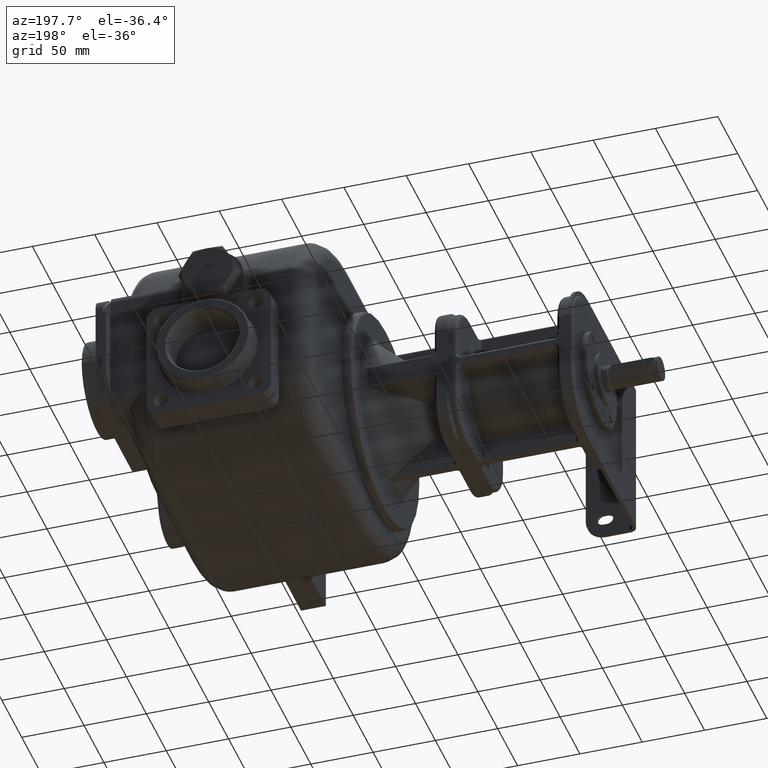
[diagram: clean part render]
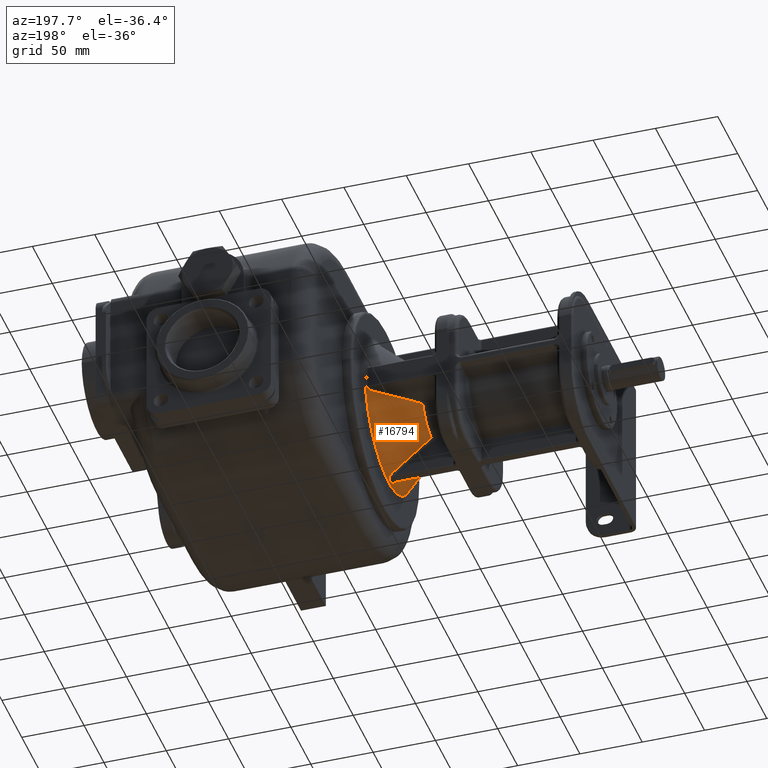
[diagram: same view with one face highlighted and labeled with its STEP entity id]
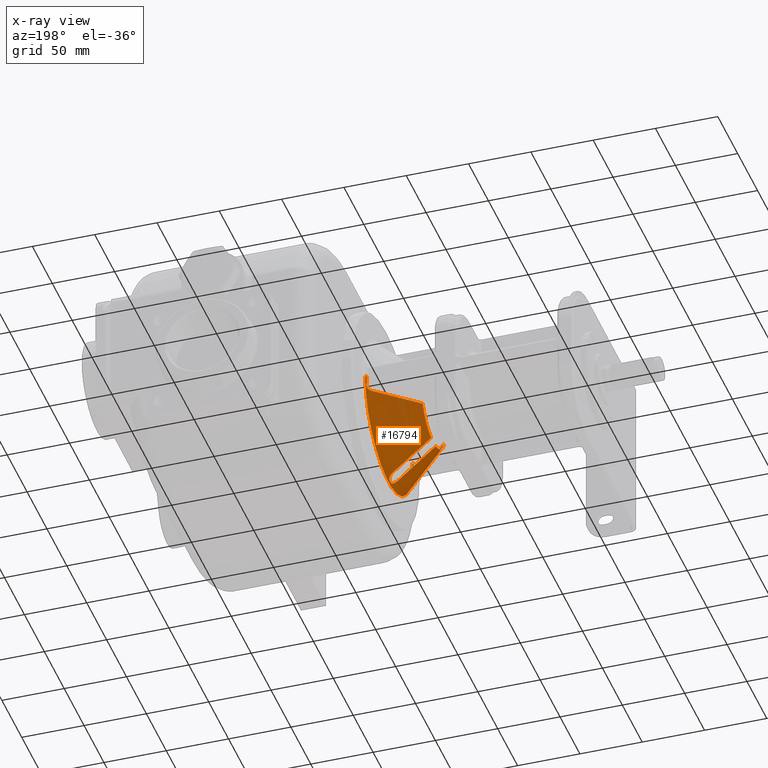
[diagram: x-ray of the same camera — body ghosted, the highlighted face saturated]
A machine part, auxiliary view. The second image highlights one B-rep face of the part: STEP entity #16794.
The next image is the same camera in x-ray: the body ghosted, the highlighted face saturated — about 0% of this face is hidden behind the body in this view.
In plain terms, the highlighted conical surface has half-angle 40 deg.
Its self-contained STEP definition (entity closure, byte-faithful):
#3073=CARTESIAN_POINT('',(-1.011567008888E2,1.158367810176E2,
-5.447662268019E1));
#3074=CARTESIAN_POINT('',(-1.010528092453E2,1.158370388626E2,
-5.456426528846E1));
#3075=CARTESIAN_POINT('',(-1.008472878269E2,1.158319745231E2,
-5.473826798686E1));
#3076=CARTESIAN_POINT('',(-1.005449646376E2,1.158079825189E2,
-5.499591031786E1));
#3077=CARTESIAN_POINT('',(-1.002507512562E2,1.157684659708E2,
-5.524829979294E1));
#3078=CARTESIAN_POINT('',(-9.996590091925E1,1.157140374673E2,
-5.549424817225E1));
#3079=CARTESIAN_POINT('',(-9.969176353626E1,1.156456867191E2,
-5.573246087079E1));
#3080=CARTESIAN_POINT('',(-9.942948093722E1,1.155646739086E2,
-5.596178531797E1));
#3081=CARTESIAN_POINT('',(-9.918033927497E1,1.154721044994E2,
-5.618096676096E1));
#3082=CARTESIAN_POINT('',(-9.894482402712E1,1.153693317733E2,
-5.638940548662E1));
#3083=CARTESIAN_POINT('',(-9.872311211805E1,1.152576387761E2,
-5.658677660881E1));
#3084=CARTESIAN_POINT('',(-9.851552033194E1,1.151380402953E2,
-5.677267012987E1));
#3085=CARTESIAN_POINT('',(-9.832187761294E1,1.150118598153E2,
-5.694706736105E1));
#3086=CARTESIAN_POINT('',(-9.814192933810E1,1.148801492655E2,
-5.711005492639E1));
#3087=CARTESIAN_POINT('',(-9.797552340422E1,1.147437130812E2,
-5.726166247373E1));
#3088=CARTESIAN_POINT('',(-9.782211493533E1,1.146036395771E2,
-5.740223488552E1));
#3089=CARTESIAN_POINT('',(-9.768120641617E1,1.144606796027E2,
-5.753211415495E1));
#3090=CARTESIAN_POINT('',(-9.755239833352E1,1.143153336955E2,
-5.765158518988E1));
#3091=CARTESIAN_POINT('',(-9.743500297319E1,1.141683099790E2,
-5.776116495038E1));
#3092=CARTESIAN_POINT('',(-9.732846196922E1,1.140201366769E2,
-5.786128115293E1));
#3093=CARTESIAN_POINT('',(-9.723235109135E1,1.138710867276E2,
-5.795227051633E1));
#3094=CARTESIAN_POINT('',(-9.714604225657E1,1.137214744274E2,
-5.803464055295E1));
#3095=CARTESIAN_POINT('',(-9.706903038610E1,1.135717193717E2,
-5.810879165527E1));
#3096=CARTESIAN_POINT('',(-9.700095971560E1,1.134220901248E2,
-5.817501154467E1));
#3097=CARTESIAN_POINT('',(-9.694138754071E1,1.132727192796E2,
-5.823367090760E1));
#3098=CARTESIAN_POINT('',(-9.688983882887E1,1.131236429525E2,
-5.828517339647E1));
#3099=CARTESIAN_POINT('',(-9.684589035304E1,1.129749645686E2,
-5.832987569404E1));
#3100=CARTESIAN_POINT('',(-9.680922339036E1,1.128264786131E2,
-5.836806220816E1));
#3101=CARTESIAN_POINT('',(-9.677969588712E1,1.126781825184E2,
-5.839985656806E1));
#3102=CARTESIAN_POINT('',(-9.675697096768E1,1.125304763340E2,
-5.842552856845E1));
#3103=CARTESIAN_POINT('',(-9.674087937685E1,1.123835376223E2,
-5.844522031893E1));
#3104=CARTESIAN_POINT('',(-9.673139275592E1,1.122374774393E2,
-5.845895912011E1));
#3105=CARTESIAN_POINT('',(-9.672814634518E1,1.120924866232E2,
-5.846705360079E1));
#3106=CARTESIAN_POINT('',(-9.672999254693E1,1.119967253805E2,
-5.846881095181E1));
#3107=CARTESIAN_POINT('',(-9.673194510983E1,1.119488538543E2,
-5.846876772443E1));
#3109=CARTESIAN_POINT('',(-9.673194510983E1,1.119488538543E2,
-5.846876772443E1));
#3110=CARTESIAN_POINT('',(-9.674517735073E1,1.116239613016E2,
-5.846848527592E1));
#3111=CARTESIAN_POINT('',(-9.676503582200E1,1.109740887467E2,
-5.846806575147E1));
#3112=CARTESIAN_POINT('',(-9.677495142533E1,1.099997057879E2,
-5.846785958511E1));
#3113=CARTESIAN_POINT('',(-9.676502068897E1,1.090251994314E2,
-5.846805999086E1));
#3114=CARTESIAN_POINT('',(-9.674519739346E1,1.083758816110E2,
-5.846847469332E1));
#3115=CARTESIAN_POINT('',(-9.673195452893E1,1.080509309162E2,
-5.846875863946E1));
#3117=CARTESIAN_POINT('',(-9.673195452893E1,1.080509309162E2,
-5.846875863946E1));
#3118=CARTESIAN_POINT('',(-9.672999949093E1,1.080032533689E2,
-5.846880672108E1));
#3119=CARTESIAN_POINT('',(-9.672808844020E1,1.079071473826E2,
-5.846708821523E1));
#3120=CARTESIAN_POINT('',(-9.673140650376E1,1.077622989162E2,
-5.845893919371E1));
#3121=CARTESIAN_POINT('',(-9.674095646810E1,1.076161678639E2,
-5.844514359305E1));
#3122=CARTESIAN_POINT('',(-9.675695762192E1,1.074691841956E2,
-5.842552507752E1));
#3123=CARTESIAN_POINT('',(-9.677973898078E1,1.073215514123E2,
-5.839980804989E1));
#3124=CARTESIAN_POINT('',(-9.680930423946E1,1.071734283270E2,
-5.836798962902E1));
#3125=CARTESIAN_POINT('',(-9.684583259812E1,1.070251505631E2,
-5.832992982956E1));
#3126=CARTESIAN_POINT('',(-9.688965211455E1,1.068768711129E2,
-5.828535744139E1));
#3127=CARTESIAN_POINT('',(-9.694107051226E1,1.067282138647E2,
-5.823398948350E1));
#3128=CARTESIAN_POINT('',(-9.700049236946E1,1.065790705709E2,
-5.817547249572E1));
#3129=CARTESIAN_POINT('',(-9.706840024747E1,1.064295437045E2,
-5.810939896999E1));
#3130=CARTESIAN_POINT('',(-9.714532043018E1,1.062797827491E2,
-5.803532813976E1));
#3131=CARTESIAN_POINT('',(-9.723171850990E1,1.061300271865E2,
-5.795287710684E1));
#3132=CARTESIAN_POINT('',(-9.732793883184E1,1.059806444423E2,
-5.786177582499E1));
#3133=CARTESIAN_POINT('',(-9.743467767509E1,1.058320081364E2,
-5.776146200132E1));
#3134=CARTESIAN_POINT('',(-9.755254617572E1,1.056845249198E2,
-5.765145069660E1));
#3135=CARTESIAN_POINT('',(-9.768193192784E1,1.055385734669E2,
-5.753144628500E1));
#3136=CARTESIAN_POINT('',(-9.782348262572E1,1.053949380156E2,
-5.740097003667E1));
#3137=CARTESIAN_POINT('',(-9.797771533518E1,1.052544110209E2,
-5.725966188140E1));
#3138=CARTESIAN_POINT('',(-9.814488135521E1,1.051175941351E2,
-5.710737635165E1));
#3139=CARTESIAN_POINT('',(-9.832545350190E1,1.049855908702E2,
-5.694383096501E1));
#3140=CARTESIAN_POINT('',(-9.851971920601E1,1.048594205621E2,
-5.676890257912E1));
#3141=CARTESIAN_POINT('',(-9.872777450921E1,1.047398685366E2,
-5.658261586995E1));
#3142=CARTESIAN_POINT('',(-9.894977516314E1,1.046282945356E2,
-5.638500594505E1));
#3143=CARTESIAN_POINT('',(-9.918546360689E1,1.045258762938E2,
-5.617644962046E1));
#3144=CARTESIAN_POINT('',(-9.943454046887E1,1.044336181886E2,
-5.595734885969E1));
#3145=CARTESIAN_POINT('',(-9.969651052705E1,1.043529716115E2,
-5.572832106375E1));
#3146=CARTESIAN_POINT('',(-9.997013213182E1,1.042850872228E2,
-5.549058864892E1));
#3147=CARTESIAN_POINT('',(-1.002542061738E2,1.042309830809E2,
-5.524532719350E1));
#3148=CARTESIAN_POINT('',(-1.005474411321E2,1.041917514917E2,
-5.499379301235E1));
#3149=CARTESIAN_POINT('',(-1.008486111242E2,1.041680050989E2,
-5.473714720886E1));
#3150=CARTESIAN_POINT('',(-1.010532697714E2,1.041629678876E2,
-5.456388141514E1));
#3151=CARTESIAN_POINT('',(-1.011567000999E2,1.041632190793E2,
-5.447662175049E1));
#3153=CARTESIAN_POINT('',(-1.011567000999E2,1.041632190793E2,
-5.447662175049E1));
#3154=CARTESIAN_POINT('',(-1.031226841712E2,1.041679998132E2,
-5.281803562768E1));
#3155=CARTESIAN_POINT('',(-1.068393960668E2,1.041778857481E2,
-4.968092910038E1));
#3156=CARTESIAN_POINT('',(-1.117236545272E2,1.041932899416E2,
-4.555392221900E1));
#3157=CARTESIAN_POINT('',(-1.160541506180E2,1.042093538242E2,
-4.189046697154E1));
#3158=CARTESIAN_POINT('',(-1.198946490615E2,1.042260042711E2,
-3.863718937804E1));
#3159=CARTESIAN_POINT('',(-1.233394345769E2,1.042433661720E2,
-3.571475559263E1));
#3160=CARTESIAN_POINT('',(-1.263721240278E2,1.042610306825E2,
-3.313766576249E1));
#3161=CARTESIAN_POINT('',(-1.290504991751E2,1.042788941215E2,
-3.085762905682E1));
#3162=CARTESIAN_POINT('',(-1.306558839478E2,1.042910782761E2,
-2.948837314977E1));
#3163=CARTESIAN_POINT('',(-1.314090022625E2,1.042971482881E2,
-2.884539967569E1));
#3165=CARTESIAN_POINT('',(-1.314090013254E2,1.1E2,0.E0));
#3166=DIRECTION('',(-1.E0,0.E0,0.E0));
#3167=DIRECTION('',(0.E0,-1.939499120428E-1,-9.810114329704E-1));
#3168=AXIS2_PLACEMENT_3D('',#3165,#3166,#3167);
#3170=CARTESIAN_POINT('',(-1.314090022122E2,8.289853276096E1,
-1.140570340056E1));
#3171=CARTESIAN_POINT('',(-1.309562819962E2,8.248945583011E1,
-1.141300107300E1));
#3172=CARTESIAN_POINT('',(-1.300105753134E2,8.163727196920E1,
-1.142770202170E1));
#3173=CARTESIAN_POINT('',(-1.284852194932E2,8.027022984770E1,
-1.144966526323E1));
#3174=CARTESIAN_POINT('',(-1.268078803501E2,7.877480212874E1,
-1.147195942515E1));
#3175=CARTESIAN_POINT('',(-1.249605788889E2,7.713616149540E1,
-1.149451325791E1));
#3176=CARTESIAN_POINT('',(-1.229160269964E2,7.533133332881E1,
-1.151733838842E1));
#3177=CARTESIAN_POINT('',(-1.206347231185E2,7.332690653369E1,
-1.154049579031E1));
#3178=CARTESIAN_POINT('',(-1.180748962295E2,7.108780704603E1,
-1.156398400364E1));
#3179=CARTESIAN_POINT('',(-1.151641562140E2,6.855274573525E1,
-1.158793758475E1));
#3180=CARTESIAN_POINT('',(-1.119137681836E2,6.573353492208E1,
-1.161173452569E1));
#3181=CARTESIAN_POINT('',(-1.083534356411E2,6.265717211974E1,
-1.163483300625E1));
#3182=CARTESIAN_POINT('',(-1.044441047815E2,5.929076342536E1,
-1.165721443522E1));
#3183=CARTESIAN_POINT('',(-1.015427024714E2,5.680016863247E1,
-1.167187126620E1));
#3184=CARTESIAN_POINT('',(-1.000240302104E2,5.549845181228E1,
-1.167901434057E1));
#3186=CARTESIAN_POINT('',(-1.000248692649E2,5.549917366027E1,
-1.167908202002E1));
#3187=CARTESIAN_POINT('',(-9.992633100086E1,5.541471714252E1,
-1.167955061833E1));
#3188=CARTESIAN_POINT('',(-9.973246248719E1,5.524742775089E1,
-1.167520092788E1));
#3189=CARTESIAN_POINT('',(-9.945096411954E1,5.500141204305E1,
-1.165389065250E1));
#3190=CARTESIAN_POINT('',(-9.917920332797E1,5.476086050706E1,
-1.161843793769E1));
#3191=CARTESIAN_POINT('',(-9.891832757313E1,5.452696764438E1,
-1.156956429786E1));
#3192=CARTESIAN_POINT('',(-9.866913704278E1,5.430066980379E1,-1.150819964E1));
#3193=CARTESIAN_POINT('',(-9.843231082595E1,5.408285975970E1,
-1.143557536453E1));
#3194=CARTESIAN_POINT('',(-9.820865720733E1,5.387447740663E1,
-1.135264474553E1));
#3195=CARTESIAN_POINT('',(-9.799850562887E1,5.367609424327E1,
-1.126059790109E1));
#3196=CARTESIAN_POINT('',(-9.780161643088E1,5.348779169245E1,
-1.116065663944E1));
#3197=CARTESIAN_POINT('',(-9.761798056248E1,5.330975055996E1,
-1.105359032726E1));
#3198=CARTESIAN_POINT('',(-9.744737003812E1,5.314200057944E1,
-1.094038624059E1));
#3199=CARTESIAN_POINT('',(-9.728929122104E1,5.298435642345E1,
-1.082214260069E1));
#3200=CARTESIAN_POINT('',(-9.714349378494E1,5.283673483328E1,
-1.069944590185E1));
#3201=CARTESIAN_POINT('',(-9.700956225584E1,5.269893108856E1,
-1.057301369677E1));
#3202=CARTESIAN_POINT('',(-9.688683156474E1,5.257054304208E1,
-1.044368609460E1));
#3203=CARTESIAN_POINT('',(-9.677489293047E1,5.245130871475E1,
-1.031190839441E1));
#3204=CARTESIAN_POINT('',(-9.667328395107E1,5.234090299425E1,
-1.017804639605E1));
#3205=CARTESIAN_POINT('',(-9.658137180422E1,5.223886985612E1,
-1.004256398896E1));
#3206=CARTESIAN_POINT('',(-9.649867517191E1,5.214486796117E1,
-9.905863568128E0));
#3207=CARTESIAN_POINT('',(-9.642483198064E1,5.205862216361E1,
-9.768157456682E0));
#3208=CARTESIAN_POINT('',(-9.635936912601E1,5.197974798500E1,
-9.629575484841E0));
#3209=CARTESIAN_POINT('',(-9.630185461328E1,5.190791070648E1,
-9.490339661248E0));
#3210=CARTESIAN_POINT('',(-9.625194294648E1,5.184285386449E1,
-9.350711308049E0));
#3211=CARTESIAN_POINT('',(-9.620932276578E1,5.178431561521E1,
-9.210747347422E0));
#3212=CARTESIAN_POINT('',(-9.617377471779E1,5.173209417303E1,
-9.070385855199E0));
#3213=CARTESIAN_POINT('',(-9.614493907690E1,5.168590300418E1,
-8.929781896581E0));
#3214=CARTESIAN_POINT('',(-9.612254716128E1,5.164551036833E1,
-8.788948963199E0));
#3215=CARTESIAN_POINT('',(-9.610658491468E1,5.161087404233E1,
-8.647716664956E0));
#3216=CARTESIAN_POINT('',(-9.609686629051E1,5.158185826427E1,
-8.506259048903E0));
#3217=CARTESIAN_POINT('',(-9.609314246247E1,5.155827724682E1,
-8.364785865277E0));
#3218=CARTESIAN_POINT('',(-9.609546385560E1,5.154016769495E1,
-8.223289342479E0));
#3219=CARTESIAN_POINT('',(-9.610377844130E1,5.152754440691E1,
-8.082247994306E0));
#3220=CARTESIAN_POINT('',(-9.611761492532E1,5.151982219176E1,
-7.940330822994E0));
#3221=CARTESIAN_POINT('',(-9.613112008871E1,5.151891748295E1,
-7.848637305641E0));
#3222=CARTESIAN_POINT('',(-9.613847345433E1,5.151907486216E1,
-7.803165217278E0));
#3224=CARTESIAN_POINT('',(-9.613847345433E1,5.151907486216E1,
-7.803165217278E0));
#3225=CARTESIAN_POINT('',(-9.619141216119E1,5.152018019581E1,
-7.475464627727E0));
#3226=CARTESIAN_POINT('',(-9.629001367422E1,5.152163509216E1,
-6.820413005399E0));
#3227=CARTESIAN_POINT('',(-9.641935760079E1,5.152463034544E1,
-5.839613026321E0));
#3228=CARTESIAN_POINT('',(-9.652863976591E1,5.152687955535E1,
-4.857674031974E0));
#3229=CARTESIAN_POINT('',(-9.661794896115E1,5.152880552660E1,
-3.877289107697E0));
#3230=CARTESIAN_POINT('',(-9.668709462061E1,5.153027845328E1,
-2.899620947252E0));
#3231=CARTESIAN_POINT('',(-9.673613131115E1,5.153131547464E1,
-1.926309110151E0));
#3232=CARTESIAN_POINT('',(-9.676527637897E1,5.153194070858E1,
-9.586489182757E-1));
#3233=CARTESIAN_POINT('',(-9.677166038412E1,5.153208799731E1,
-3.188337315412E-1));
#3234=CARTESIAN_POINT('',(-9.677166304923E1,5.153208888624E1,
1.926887447282E-14));
#3236=DIRECTION('',(7.660442860451E-1,-6.427877968799E-1,1.564773499040E-12));
#3237=VECTOR('',#3236,1.473006843776E0);
#3238=CARTESIAN_POINT('',(-9.677166281786E1,5.153208916198E1,
-1.088777094602E-12));
#3239=LINE('',#3238,#3237);
#3240=CARTESIAN_POINT('',(-9.564327434188E1,1.1E2,0.E0));
#3241=DIRECTION('',(-1.E0,0.E0,0.E0));
#3242=DIRECTION('',(0.E0,1.E0,0.E0));
#3243=AXIS2_PLACEMENT_3D('',#3240,#3241,#3242);
#3245=DIRECTION('',(7.660442845769E-1,6.427877986296E-1,-1.466896731564E-12));
#3246=VECTOR('',#3245,1.473006843776E0);
#3247=CARTESIAN_POINT('',(-9.677166281570E1,1.684679108354E2,
9.414014882271E-13));
#3248=LINE('',#3247,#3246);
#3249=CARTESIAN_POINT('',(-9.677166304923E1,1.684679111138E2,
-2.817685603477E-14));
#3250=CARTESIAN_POINT('',(-9.677166070513E1,1.684679118959E2,
-3.183299698385E-1));
#3251=CARTESIAN_POINT('',(-9.676529928852E1,1.684680566516E2,
-9.573354870458E-1));
#3252=CARTESIAN_POINT('',(-9.673621254158E1,1.684686769709E2,
-1.924414816062E0));
#3253=CARTESIAN_POINT('',(-9.668721677272E1,1.684697175102E2,
-2.897655114912E0));
#3254=CARTESIAN_POINT('',(-9.661807854492E1,1.684711929965E2,
-3.875704697742E0));
#3255=CARTESIAN_POINT('',(-9.652873221331E1,1.684731255773E2,
-4.856754394521E0));
#3256=CARTESIAN_POINT('',(-9.641937459684E1,1.684753372388E2,
-5.839803118367E0));
#3257=CARTESIAN_POINT('',(-9.628980303020E1,1.684784887280E2,
-6.821003402487E0));
#3258=CARTESIAN_POINT('',(-9.619126391467E1,1.684795695626E2,
-7.478365247344E0));
#3259=CARTESIAN_POINT('',(-9.613809211686E1,1.684806726935E2,
-7.807475325733E0));
#3261=CARTESIAN_POINT('',(-9.613809211686E1,1.684806726935E2,
-7.807475325733E0));
#3262=CARTESIAN_POINT('',(-9.613066981616E1,1.684808301849E2,
-7.853365224639E0));
#3263=CARTESIAN_POINT('',(-9.611668345029E1,1.684801358644E2,
-7.946468506725E0));
#3264=CARTESIAN_POINT('',(-9.610281126019E1,1.684716717454E2,
-8.093871573458E0));
#3265=CARTESIAN_POINT('',(-9.609486596951E1,1.684580371576E2,
-8.239664043993E0));
#3266=CARTESIAN_POINT('',(-9.609321680505E1,1.684386077957E2,
-8.386110614896E0));
#3267=CARTESIAN_POINT('',(-9.609810781145E1,1.684132941261E2,
-8.532307258921E0));
#3268=CARTESIAN_POINT('',(-9.610948190384E1,1.683821454045E2,
-8.678226789809E0));
#3269=CARTESIAN_POINT('',(-9.612736571436E1,1.683451780135E2,
-8.823577143338E0));
#3270=CARTESIAN_POINT('',(-9.615205496027E1,1.683021753618E2,
-8.968120751465E0));
#3271=CARTESIAN_POINT('',(-9.618362071409E1,1.682530211841E2,
-9.112208289718E0));
#3272=CARTESIAN_POINT('',(-9.622227008450E1,1.681975039400E2,
-9.256034521639E0));
#3273=CARTESIAN_POINT('',(-9.626843409156E1,1.681352607892E2,
-9.399538113913E0));
#3274=CARTESIAN_POINT('',(-9.632247699930E1,1.680659729778E2,
-9.542734029855E0));
#3275=CARTESIAN_POINT('',(-9.638476366287E1,1.679893267237E2,
-9.685596918693E0));
#3276=CARTESIAN_POINT('',(-9.645566364380E1,1.679050427731E2,
-9.827870882756E0));
#3277=CARTESIAN_POINT('',(-9.653569660541E1,1.678127175531E2,
-9.969291739568E0));
#3278=CARTESIAN_POINT('',(-9.662547001824E1,1.677118625952E2,
-1.010966194384E1));
#3279=CARTESIAN_POINT('',(-9.672542270805E1,1.676021514452E2,
-1.024868502468E1));
#3280=CARTESIAN_POINT('',(-9.683604271331E1,1.674832466128E2,
-1.038590519599E1));
#3281=CARTESIAN_POINT('',(-9.695805925451E1,1.673546402887E2,
-1.052069497439E1));
#3282=CARTESIAN_POINT('',(-9.709193731279E1,1.672160383177E2,
-1.065251973211E1));
#3283=CARTESIAN_POINT('',(-9.723805466184E1,1.670672353251E2,
-1.078079182399E1));
#3284=CARTESIAN_POINT('',(-9.739706413909E1,1.669078797002E2,
-1.090448903552E1));
#3285=CARTESIAN_POINT('',(-9.756933744318E1,1.667378257930E2,
-1.102281639678E1));
#3286=CARTESIAN_POINT('',(-9.775512455265E1,1.665570278752E2,
-1.113503326283E1));
#3287=CARTESIAN_POINT('',(-9.795482412292E1,1.663654309736E2,
-1.123984067830E1));
#3288=CARTESIAN_POINT('',(-9.816849938413E1,1.661632179637E2,
-1.133624221114E1));
#3289=CARTESIAN_POINT('',(-9.839618759799E1,1.659505872916E2,
-1.142330972199E1));
#3290=CARTESIAN_POINT('',(-9.863771845551E1,1.657280331924E2,
-1.149957537752E1));
#3291=CARTESIAN_POINT('',(-9.889222957504E1,1.654965818328E2,
-1.156391582298E1));
#3292=CARTESIAN_POINT('',(-9.915888970537E1,1.652572164483E2,
-1.161531105461E1));
#3293=CARTESIAN_POINT('',(-9.943680944929E1,1.650110119589E2,
-1.165256330985E1));
#3294=CARTESIAN_POINT('',(-9.972507995096E1,1.647589540261E2,
-1.167496715220E1));
#3295=CARTESIAN_POINT('',(-9.992304756611E1,1.645881274100E2,
-1.167945216593E1));
#3296=CARTESIAN_POINT('',(-1.000235877502E2,1.645019478784E2,
-1.167898025028E1));
#3298=CARTESIAN_POINT('',(-1.000236027027E2,1.645019216443E2,
-1.167898032508E1));
#3299=CARTESIAN_POINT('',(-1.015462148543E2,1.631968290036E2,
-1.167181899530E1));
#3300=CARTESIAN_POINT('',(-1.044527157278E2,1.607018346551E2,
-1.165718596467E1));
#3301=CARTESIAN_POINT('',(-1.083651958216E2,1.573326884724E2,
-1.163475778454E1));
#3302=CARTESIAN_POINT('',(-1.119283622327E2,1.542538357823E2,
-1.161163626385E1));
#3303=CARTESIAN_POINT('',(-1.151804325193E2,1.514331088542E2,
-1.158781094807E1));
#3304=CARTESIAN_POINT('',(-1.180870524154E2,1.489015769180E2,
-1.156387677553E1));
#3305=CARTESIAN_POINT('',(-1.206413822744E2,1.466672514987E2,
-1.154043039079E1));
#3306=CARTESIAN_POINT('',(-1.229200842871E2,1.446650899326E2,
-1.151729432805E1));
#3307=CARTESIAN_POINT('',(-1.249615229900E2,1.428630009275E2,
-1.149450173129E1));
#3308=CARTESIAN_POINT('',(-1.268083932728E2,1.412247398410E2,
-1.147195248511E1));
#3309=CARTESIAN_POINT('',(-1.284831543711E2,1.397316121881E2,
-1.144969304573E1));
#3310=CARTESIAN_POINT('',(-1.300078664579E2,1.383651635315E2,
-1.142774246844E1));
#3311=CARTESIAN_POINT('',(-1.309550964233E2,1.375116155056E2,
-1.141302018616E1));
#3312=CARTESIAN_POINT('',(-1.314090022150E2,1.371014672421E2,
-1.140570340184E1));
#3314=CARTESIAN_POINT('',(-1.314090013254E2,1.1E2,0.E0));
#3315=DIRECTION('',(-1.E0,0.E0,0.E0));
#3316=DIRECTION('',(0.E0,9.217015387176E-1,-3.878998240856E-1));
#3317=AXIS2_PLACEMENT_3D('',#3314,#3315,#3316);
#3319=CARTESIAN_POINT('',(-1.314090022624E2,1.157028517119E2,
-2.884539967555E1));
#3320=CARTESIAN_POINT('',(-1.306573793674E2,1.157089096665E2,
-2.948709640333E1));
#3321=CARTESIAN_POINT('',(-1.290542988564E2,1.157210785507E2,
-3.085438977687E1));
#3322=CARTESIAN_POINT('',(-1.263780570529E2,1.157389322835E2,
-3.313262021426E1));
#3323=CARTESIAN_POINT('',(-1.233439251681E2,1.157566096343E2,
-3.571094278693E1));
#3324=CARTESIAN_POINT('',(-1.199016143704E2,1.157739630360E2,
-3.863128455478E1));
#3325=CARTESIAN_POINT('',(-1.160596652855E2,1.157906246782E2,
-4.188579977231E1));
#3326=CARTESIAN_POINT('',(-1.117272891501E2,1.158066980672E2,
-4.555085029678E1));
#3327=CARTESIAN_POINT('',(-1.068409064900E2,1.158221101886E2,
-4.967965343420E1));
#3328=CARTESIAN_POINT('',(-1.031231556131E2,1.158319991377E2,
-5.281763953038E1));
#3329=CARTESIAN_POINT('',(-1.011567008888E2,1.158367810176E2,
-5.447662268019E1));
#4478=CARTESIAN_POINT('',(-9.677166281570E1,1.684679108354E2,
9.414014882271E-13));
#4485=CARTESIAN_POINT('',(-9.677166304923E1,5.153208888624E1,
1.926887447282E-14));
#4849=CARTESIAN_POINT('',(-1.314090022625E2,1.042971482881E2,
-2.884539967569E1));
#12081=CARTESIAN_POINT('',(-9.564327434188E1,5.058525833808E1,
1.966416026876E-14));
#12082=CARTESIAN_POINT('',(-9.564327434188E1,1.694147416619E2,
-1.399749272917E-14));
#12083=VERTEX_POINT('',#12081);
#12084=VERTEX_POINT('',#12082);
#12245=VERTEX_POINT('',#3170);
#12246=VERTEX_POINT('',#3184);
#12282=VERTEX_POINT('',#4849);
#12284=VERTEX_POINT('',#3153);
#12285=VERTEX_POINT('',#3319);
#12286=VERTEX_POINT('',#3329);
#12314=VERTEX_POINT('',#3298);
#12315=VERTEX_POINT('',#3312);
#12330=CARTESIAN_POINT('',(-9.673194680819E1,1.119489584473E2,
-5.846876162702E1));
#12331=VERTEX_POINT('',#12330);
#12332=CARTESIAN_POINT('',(-9.673195219609E1,1.080510445146E2,
-5.846876526336E1));
#12333=VERTEX_POINT('',#12332);
#12334=CARTESIAN_POINT('',(-9.613885414197E1,5.151864908698E1,
-7.797513633057E0));
#12335=VERTEX_POINT('',#12334);
#12342=CARTESIAN_POINT('',(-9.613886652983E1,1.684813556977E2,
-7.797506823011E0));
#12343=VERTEX_POINT('',#12342);
#12347=VERTEX_POINT('',#4478);
#12348=VERTEX_POINT('',#4485);
#16756=CARTESIAN_POINT('',(-1.135261378336E2,1.1E2,0.E0));
#16757=DIRECTION('',(1.E0,0.E0,0.E0));
#16758=DIRECTION('',(0.E0,-1.E0,0.E0));
#16759=AXIS2_PLACEMENT_3D('',#16756,#16757,#16758);
#16760=CONICAL_SURFACE('',#16759,4.440923750161E1,4.E1);
#16762=ORIENTED_EDGE('',*,*,#16761,.T.);
#16764=ORIENTED_EDGE('',*,*,#16763,.T.);
#16766=ORIENTED_EDGE('',*,*,#16765,.T.);
#16768=ORIENTED_EDGE('',*,*,#16767,.T.);
#16770=ORIENTED_EDGE('',*,*,#16769,.T.);
#16772=ORIENTED_EDGE('',*,*,#16771,.T.);
#16774=ORIENTED_EDGE('',*,*,#16773,.T.);
#16776=ORIENTED_EDGE('',*,*,#16775,.T.);
#16778=ORIENTED_EDGE('',*,*,#16777,.T.);
#16779=ORIENTED_EDGE('',*,*,#16750,.F.);
#16781=ORIENTED_EDGE('',*,*,#16780,.F.);
#16783=ORIENTED_EDGE('',*,*,#16782,.T.);
#16785=ORIENTED_EDGE('',*,*,#16784,.T.);
#16787=ORIENTED_EDGE('',*,*,#16786,.T.);
#16789=ORIENTED_EDGE('',*,*,#16788,.T.);
#16791=ORIENTED_EDGE('',*,*,#16790,.T.);
#16792=EDGE_LOOP('',(#16762,#16764,#16766,#16768,#16770,#16772,#16774,#16776,
#16778,#16779,#16781,#16783,#16785,#16787,#16789,#16791));
#16793=FACE_OUTER_BOUND('',#16792,.F.);
#16794=ADVANCED_FACE('',(#16793),#16760,.T.);
#3108=B_SPLINE_CURVE_WITH_KNOTS('',3,(#3073,#3074,#3075,#3076,#3077,#3078,#3079,
#3080,#3081,#3082,#3083,#3084,#3085,#3086,#3087,#3088,#3089,#3090,#3091,#3092,
#3093,#3094,#3095,#3096,#3097,#3098,#3099,#3100,#3101,#3102,#3103,#3104,#3105,
#3106,#3107),.UNSPECIFIED.,.F.,.F.,(4,1,1,1,1,1,1,1,1,1,1,1,1,1,1,1,1,1,1,1,1,1,
1,1,1,1,1,1,1,1,1,1,4),(0.E0,3.125E-2,6.25E-2,9.375E-2,1.25E-1,1.5625E-1,
1.875E-1,2.1875E-1,2.5E-1,2.8125E-1,3.125E-1,3.4375E-1,3.75E-1,4.0625E-1,
4.375E-1,4.6875E-1,5.E-1,5.3125E-1,5.625E-1,5.9375E-1,6.25E-1,6.5625E-1,
6.875E-1,7.1875E-1,7.5E-1,7.8125E-1,8.125E-1,8.4375E-1,8.75E-1,9.0625E-1,
9.375E-1,9.6875E-1,1.E0),.UNSPECIFIED.);
#3116=B_SPLINE_CURVE_WITH_KNOTS('',3,(#3109,#3110,#3111,#3112,#3113,#3114,
#3115),.UNSPECIFIED.,.F.,.F.,(4,1,1,1,4),(0.E0,2.5E-1,5.E-1,7.5E-1,1.E0),
.UNSPECIFIED.);
#3152=B_SPLINE_CURVE_WITH_KNOTS('',3,(#3117,#3118,#3119,#3120,#3121,#3122,#3123,
#3124,#3125,#3126,#3127,#3128,#3129,#3130,#3131,#3132,#3133,#3134,#3135,#3136,
#3137,#3138,#3139,#3140,#3141,#3142,#3143,#3144,#3145,#3146,#3147,#3148,#3149,
#3150,#3151),.UNSPECIFIED.,.F.,.F.,(4,1,1,1,1,1,1,1,1,1,1,1,1,1,1,1,1,1,1,1,1,1,
1,1,1,1,1,1,1,1,1,1,4),(0.E0,3.125E-2,6.25E-2,9.375E-2,1.25E-1,1.5625E-1,
1.875E-1,2.1875E-1,2.5E-1,2.8125E-1,3.125E-1,3.4375E-1,3.75E-1,4.0625E-1,
4.375E-1,4.6875E-1,5.E-1,5.3125E-1,5.625E-1,5.9375E-1,6.25E-1,6.5625E-1,
6.875E-1,7.1875E-1,7.5E-1,7.8125E-1,8.125E-1,8.4375E-1,8.75E-1,9.0625E-1,
9.375E-1,9.6875E-1,1.E0),.UNSPECIFIED.);
#3164=B_SPLINE_CURVE_WITH_KNOTS('',3,(#3153,#3154,#3155,#3156,#3157,#3158,#3159,
#3160,#3161,#3162,#3163),.UNSPECIFIED.,.F.,.F.,(4,1,1,1,1,1,1,1,4),(0.E0,
1.25E-1,2.5E-1,3.75E-1,5.E-1,6.25E-1,7.5E-1,8.75E-1,1.E0),.UNSPECIFIED.);
#3169=CIRCLE('',#3168,2.940373334129E1);
#3185=B_SPLINE_CURVE_WITH_KNOTS('',3,(#3170,#3171,#3172,#3173,#3174,#3175,#3176,
#3177,#3178,#3179,#3180,#3181,#3182,#3183,#3184),.UNSPECIFIED.,.F.,.F.,(4,1,1,1,
1,1,1,1,1,1,1,1,4),(0.E0,8.333333333333E-2,1.666666666667E-1,2.5E-1,
3.333333333333E-1,4.166666666667E-1,5.E-1,5.833333333333E-1,6.666666666667E-1,
7.5E-1,8.333333333333E-1,9.166666666667E-1,1.E0),.UNSPECIFIED.);
#3223=B_SPLINE_CURVE_WITH_KNOTS('',3,(#3186,#3187,#3188,#3189,#3190,#3191,#3192,
#3193,#3194,#3195,#3196,#3197,#3198,#3199,#3200,#3201,#3202,#3203,#3204,#3205,
#3206,#3207,#3208,#3209,#3210,#3211,#3212,#3213,#3214,#3215,#3216,#3217,#3218,
#3219,#3220,#3221,#3222),.UNSPECIFIED.,.F.,.F.,(4,1,1,1,1,1,1,1,1,1,1,1,1,1,1,1,
1,1,1,1,1,1,1,1,1,1,1,1,1,1,1,1,1,1,4),(0.E0,2.941176470588E-2,
5.882352941176E-2,8.823529411765E-2,1.176470588235E-1,1.470588235294E-1,
1.764705882353E-1,2.058823529412E-1,2.352941176471E-1,2.647058823529E-1,
2.941176470588E-1,3.235294117647E-1,3.529411764706E-1,3.823529411765E-1,
4.117647058824E-1,4.411764705882E-1,4.705882352941E-1,5.E-1,5.294117647059E-1,
5.588235294118E-1,5.882352941176E-1,6.176470588235E-1,6.470588235294E-1,
6.764705882353E-1,7.058823529412E-1,7.352941176471E-1,7.647058823529E-1,
7.941176470588E-1,8.235294117647E-1,8.529411764706E-1,8.823529411765E-1,
9.117647058824E-1,9.411764705882E-1,9.705882352941E-1,1.E0),.UNSPECIFIED.);
#3235=B_SPLINE_CURVE_WITH_KNOTS('',3,(#3224,#3225,#3226,#3227,#3228,#3229,#3230,
#3231,#3232,#3233,#3234),.UNSPECIFIED.,.F.,.F.,(4,1,1,1,1,1,1,1,4),(0.E0,
1.25E-1,2.5E-1,3.75E-1,5.E-1,6.25E-1,7.5E-1,8.75E-1,1.E0),.UNSPECIFIED.);
#3244=CIRCLE('',#3243,5.941474166192E1);
#3260=B_SPLINE_CURVE_WITH_KNOTS('',3,(#3249,#3250,#3251,#3252,#3253,#3254,#3255,
#3256,#3257,#3258,#3259),.UNSPECIFIED.,.F.,.F.,(4,1,1,1,1,1,1,1,4),(0.E0,
1.25E-1,2.5E-1,3.75E-1,5.E-1,6.25E-1,7.5E-1,8.75E-1,1.E0),.UNSPECIFIED.);
#3297=B_SPLINE_CURVE_WITH_KNOTS('',3,(#3261,#3262,#3263,#3264,#3265,#3266,#3267,
#3268,#3269,#3270,#3271,#3272,#3273,#3274,#3275,#3276,#3277,#3278,#3279,#3280,
#3281,#3282,#3283,#3284,#3285,#3286,#3287,#3288,#3289,#3290,#3291,#3292,#3293,
#3294,#3295,#3296),.UNSPECIFIED.,.F.,.F.,(4,1,1,1,1,1,1,1,1,1,1,1,1,1,1,1,1,1,1,
1,1,1,1,1,1,1,1,1,1,1,1,1,1,4),(0.E0,3.030303030303E-2,6.060606060606E-2,
9.090909090909E-2,1.212121212121E-1,1.515151515152E-1,1.818181818182E-1,
2.121212121212E-1,2.424242424242E-1,2.727272727273E-1,3.030303030303E-1,
3.333333333333E-1,3.636363636364E-1,3.939393939394E-1,4.242424242424E-1,
4.545454545455E-1,4.848484848485E-1,5.151515151515E-1,5.454545454545E-1,
5.757575757576E-1,6.060606060606E-1,6.363636363636E-1,6.666666666667E-1,
6.969696969697E-1,7.272727272727E-1,7.575757575758E-1,7.878787878788E-1,
8.181818181818E-1,8.484848484848E-1,8.787878787879E-1,9.090909090909E-1,
9.393939393939E-1,9.696969696970E-1,1.E0),.UNSPECIFIED.);
#3313=B_SPLINE_CURVE_WITH_KNOTS('',3,(#3298,#3299,#3300,#3301,#3302,#3303,#3304,
#3305,#3306,#3307,#3308,#3309,#3310,#3311,#3312),.UNSPECIFIED.,.F.,.F.,(4,1,1,1,
1,1,1,1,1,1,1,1,4),(0.E0,8.333333333333E-2,1.666666666667E-1,2.5E-1,
3.333333333333E-1,4.166666666667E-1,5.E-1,5.833333333333E-1,6.666666666667E-1,
7.5E-1,8.333333333333E-1,9.166666666667E-1,1.E0),.UNSPECIFIED.);
#3318=CIRCLE('',#3317,2.940373334129E1);
#3330=B_SPLINE_CURVE_WITH_KNOTS('',3,(#3319,#3320,#3321,#3322,#3323,#3324,#3325,
#3326,#3327,#3328,#3329),.UNSPECIFIED.,.F.,.F.,(4,1,1,1,1,1,1,1,4),(0.E0,
1.25E-1,2.5E-1,3.75E-1,5.E-1,6.25E-1,7.5E-1,8.75E-1,1.E0),.UNSPECIFIED.);
#16750=EDGE_CURVE('',#12084,#12083,#3244,.T.);
#16761=EDGE_CURVE('',#12286,#12331,#3108,.T.);
#16763=EDGE_CURVE('',#12331,#12333,#3116,.T.);
#16765=EDGE_CURVE('',#12333,#12284,#3152,.T.);
#16767=EDGE_CURVE('',#12284,#12282,#3164,.T.);
#16769=EDGE_CURVE('',#12282,#12245,#3169,.T.);
#16771=EDGE_CURVE('',#12245,#12246,#3185,.T.);
#16773=EDGE_CURVE('',#12246,#12335,#3223,.T.);
#16775=EDGE_CURVE('',#12335,#12348,#3235,.T.);
#16777=EDGE_CURVE('',#12348,#12083,#3239,.T.);
#16780=EDGE_CURVE('',#12347,#12084,#3248,.T.);
#16782=EDGE_CURVE('',#12347,#12343,#3260,.T.);
#16784=EDGE_CURVE('',#12343,#12314,#3297,.T.);
#16786=EDGE_CURVE('',#12314,#12315,#3313,.T.);
#16788=EDGE_CURVE('',#12315,#12285,#3318,.T.);
#16790=EDGE_CURVE('',#12285,#12286,#3330,.T.);